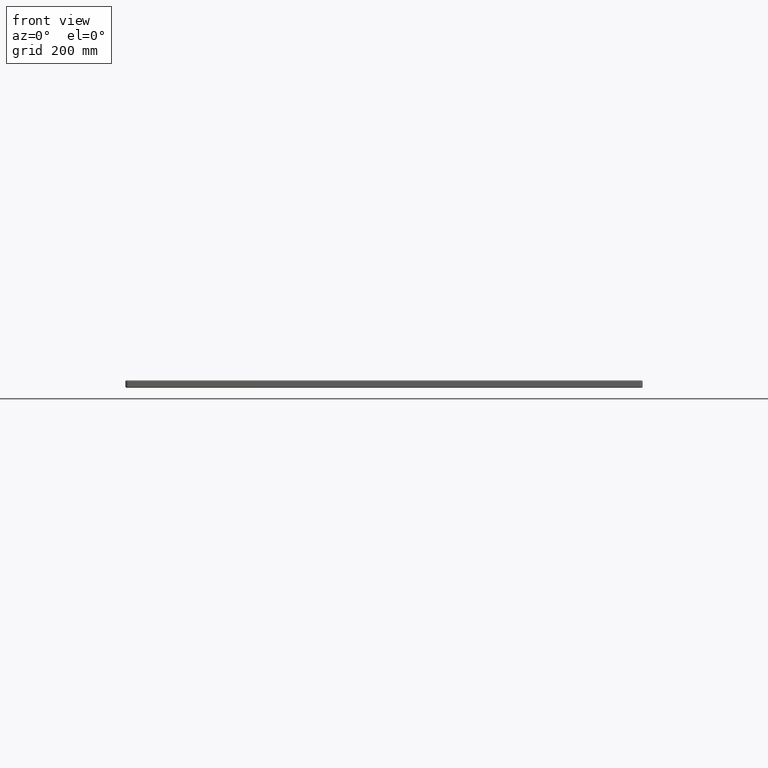
[diagram: clean part render]
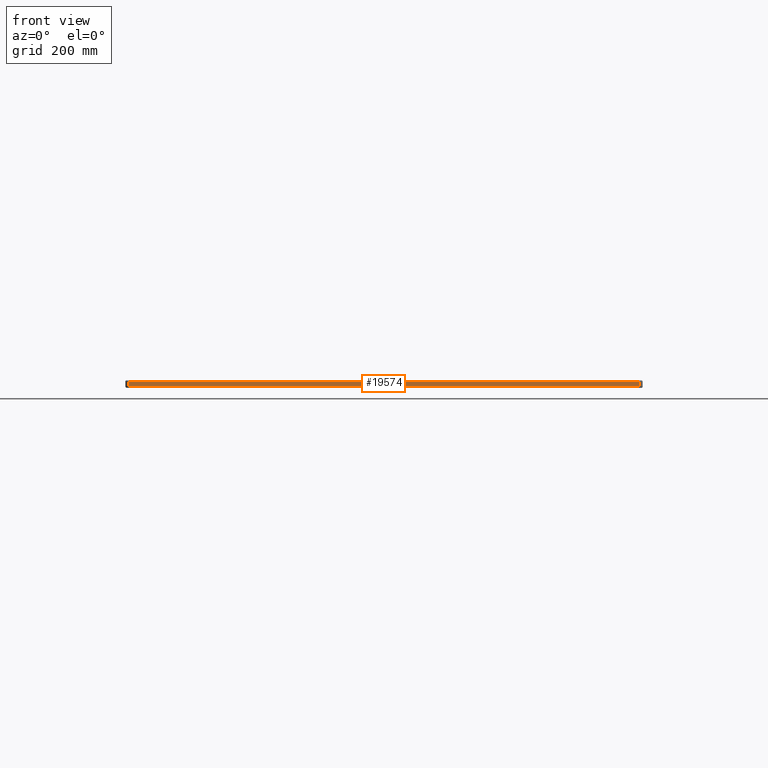
[diagram: same view with one face highlighted and labeled with its STEP entity id]
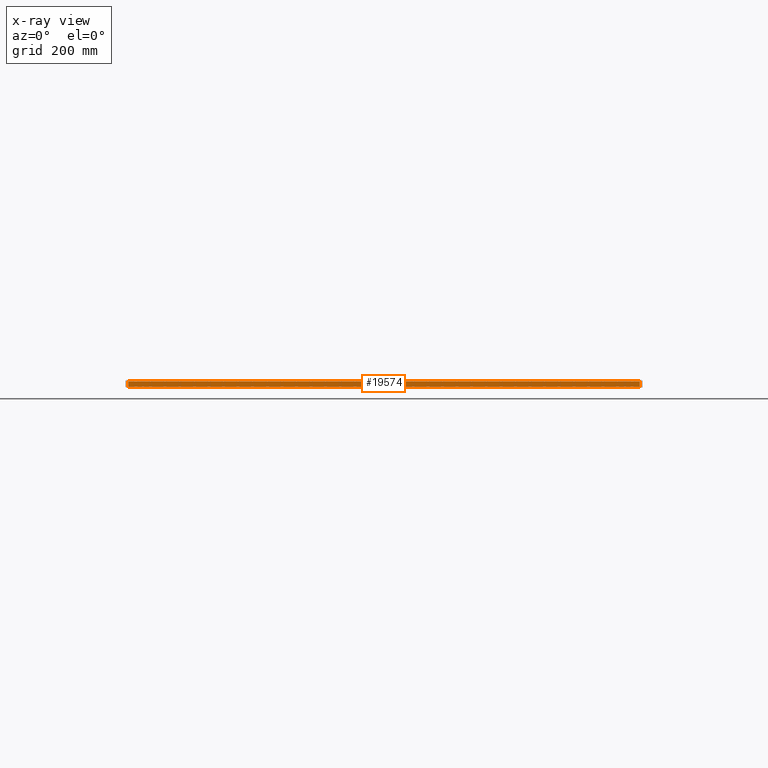
[diagram: x-ray of the same camera — body ghosted, the highlighted face saturated]
A machine part, front view. The second image highlights one B-rep face of the part: STEP entity #19574.
The next image is the same camera in x-ray: the body ghosted, the highlighted face saturated — about 0% of this face is hidden behind the body in this view.
In plain terms, the highlighted planar face has unit normal (0, -1, 0).
Its self-contained STEP definition (entity closure, byte-faithful):
#866 = CARTESIAN_POINT ( 'NONE',  ( 895.0000000000000000, 0.0000000000000000000, -2.000000000000000000 ) ) ;
#2646 = VERTEX_POINT ( 'NONE', #60460 ) ;
#5745 = VECTOR ( 'NONE', #56888, 1000.000000000000000 ) ;
#8305 = DIRECTION ( 'NONE',  ( 0.0000000000000000000, -1.000000000000000000, 0.0000000000000000000 ) ) ;
#11186 = VECTOR ( 'NONE', #14669, 1000.000000000000000 ) ;
#11684 = VECTOR ( 'NONE', #90473, 1000.000000000000000 ) ;
#11704 = CARTESIAN_POINT ( 'NONE',  ( 4.999999999999999100, 0.0000000000000000000, -2.000000000000000000 ) ) ;
#12103 = EDGE_CURVE ( 'NONE', #77344, #38029, #77969, .T. ) ;
#14669 = DIRECTION ( 'NONE',  ( -0.0000000000000000000, -0.0000000000000000000, -1.000000000000000000 ) ) ;
#16749 = PLANE ( 'NONE',  #71496 ) ;
#19574 = ADVANCED_FACE ( 'NONE', ( #24662 ), #16749, .T. ) ;
#21480 = CARTESIAN_POINT ( 'NONE',  ( 4.999999999999999100, 0.0000000000000000000, -13.00000000000000000 ) ) ;
#23227 = DIRECTION ( 'NONE',  ( 0.0000000000000000000, -0.0000000000000000000, -1.000000000000000000 ) ) ;
#24662 = FACE_OUTER_BOUND ( 'NONE', #27662, .T. ) ;
#27516 = ORIENTED_EDGE ( 'NONE', *, *, #34253, .T. ) ;
#27662 = EDGE_LOOP ( 'NONE', ( #42916, #40290, #89756, #27516 ) ) ;
#30600 = LINE ( 'NONE', #90159, #11684 ) ;
#31026 = CARTESIAN_POINT ( 'NONE',  ( 895.0000000000000000, 0.0000000000000000000, -13.00000000000000000 ) ) ;
#34253 = EDGE_CURVE ( 'NONE', #38029, #54243, #30600, .T. ) ;
#36972 = DIRECTION ( 'NONE',  ( -0.0000000000000000000, 0.0000000000000000000, 1.000000000000000000 ) ) ;
#38029 = VERTEX_POINT ( 'NONE', #866 ) ;
#40290 = ORIENTED_EDGE ( 'NONE', *, *, #86985, .T. ) ;
#42916 = ORIENTED_EDGE ( 'NONE', *, *, #59703, .T. ) ;
#45352 = CARTESIAN_POINT ( 'NONE',  ( 0.0000000000000000000, 0.0000000000000000000, -13.00000000000000000 ) ) ;
#47892 = LINE ( 'NONE', #21480, #11186 ) ;
#54243 = VERTEX_POINT ( 'NONE', #11704 ) ;
#56888 = DIRECTION ( 'NONE',  ( 1.000000000000000000, 0.0000000000000000000, 0.0000000000000000000 ) ) ;
#59703 = EDGE_CURVE ( 'NONE', #54243, #2646, #47892, .T. ) ;
#60460 = CARTESIAN_POINT ( 'NONE',  ( 4.999999999999999100, 0.0000000000000000000, -11.00000000000000000 ) ) ;
#62560 = LINE ( 'NONE', #77980, #5745 ) ;
#66908 = VECTOR ( 'NONE', #36972, 1000.000000000000000 ) ;
#70208 = CARTESIAN_POINT ( 'NONE',  ( 895.0000000000000000, 0.0000000000000000000, -11.00000000000000000 ) ) ;
#71496 = AXIS2_PLACEMENT_3D ( 'NONE', #45352, #8305, #23227 ) ;
#77344 = VERTEX_POINT ( 'NONE', #70208 ) ;
#77969 = LINE ( 'NONE', #31026, #66908 ) ;
#77980 = CARTESIAN_POINT ( 'NONE',  ( 0.0000000000000000000, 0.0000000000000000000, -11.00000000000000000 ) ) ;
#86985 = EDGE_CURVE ( 'NONE', #2646, #77344, #62560, .T. ) ;
#89756 = ORIENTED_EDGE ( 'NONE', *, *, #12103, .T. ) ;
#90159 = CARTESIAN_POINT ( 'NONE',  ( 4.999999999999999100, 0.0000000000000000000, -2.000000000000000000 ) ) ;
#90473 = DIRECTION ( 'NONE',  ( -1.000000000000000000, -0.0000000000000000000, 0.0000000000000000000 ) ) ;